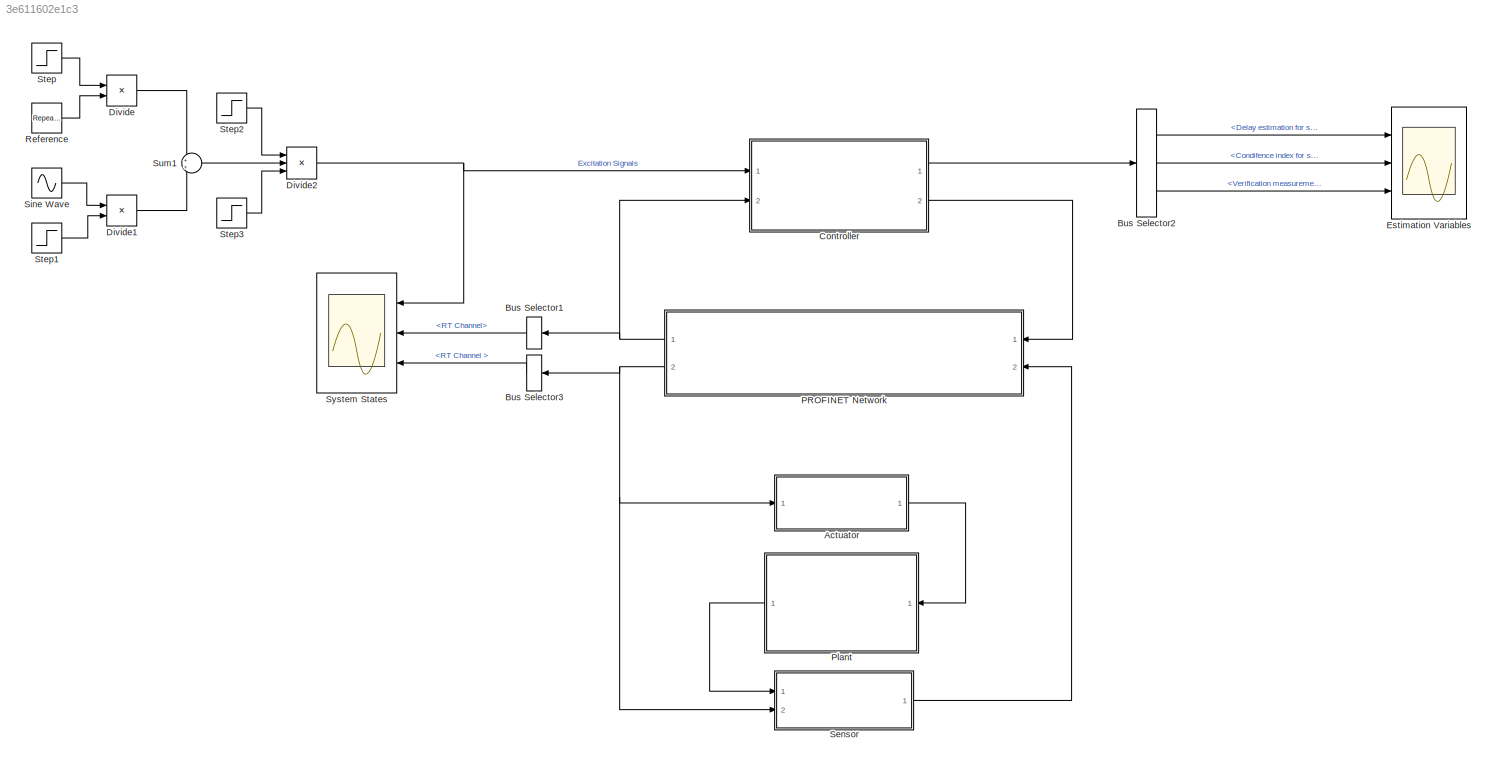
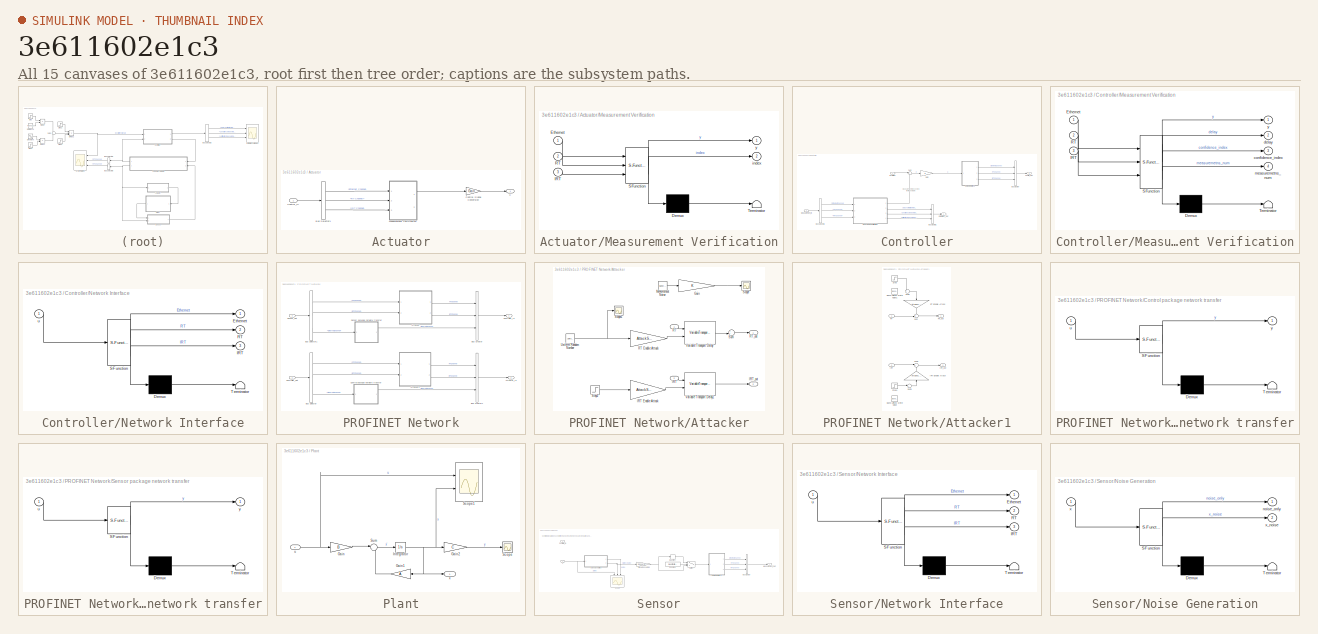
[diagram: thumbnail index - all 15 canvases of the model, root first then tree order]
MODEL slx_3e611602e1c3
KIND model
CONFIG AbsTol = auto
CONFIG EnableMultiTasking = off
CONFIG FixedStep = Ts
CONFIG MaxStep = auto
CONFIG MinStep = auto
CONFIG RelTol = 1e-3
CONFIG SampleTimeConstraint = Unconstrained
CONFIG Solver = FixedStepAuto
CONFIG SolverName = FixedStepAuto
CONFIG StartTime = 0.0
CONFIG StopTime = 80
BLOCK [SubSystem] Actuator
  Ports = [1, 1]
  RequestExecContextInheritance = off
  Variant = off
BLOCK [BusSelector] Actuator/Bus Selector1
  OutputSignals = Ethernet Channel,RT Channel ,IRT Channel
  Ports = [1, 3]
BLOCK [Gain] Actuator/Control Signal Conversion
  Gain = Gain
  OutDataTypeStr = Inherit: Inherit via internal rule
  ParamDataTypeStr = Inherit: Inherit via internal rule
  SaturateOnIntegerOverflow = off
BLOCK [Inport] Actuator/Control_In
  IconDisplay = Port number
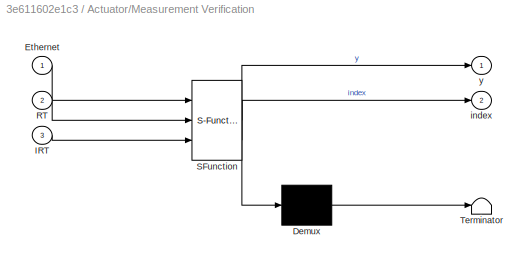
BLOCK [SubSystem] Actuator/Measurement Verification
  ErrorFcn = Stateflow.Translate.translate
  PermitHierarchicalResolution = ExplicitOnly
  Ports = [3, 2]
  RequestExecContextInheritance = off
  SFBlockType = MATLAB Function
  TreatAsAtomicUnit = on
  Variant = off
BLOCK [Demux] Actuator/Measurement Verification/ Demux 
  Outputs = 1
  Ports = [1, 1]
BLOCK [S-Function] Actuator/Measurement Verification/ SFunction 
  EnableBusSupport = on
  FunctionName = sf_sfun
  Parameters = ActuatorCh
  PortCounts = [3 3]
  Ports = [3, 3]
  SFcnIsStateOwnerBlock = off
  SFunctionDeploymentMode = off
  Tag = Stateflow S-Function profinet_simulation_ss_separated_index 1
BLOCK [Terminator] Actuator/Measurement Verification/ Terminator 
BLOCK [Inport] Actuator/Measurement Verification/Ethernet
  IconDisplay = Port number
BLOCK [Inport] Actuator/Measurement Verification/IRT
  IconDisplay = Port number
  Port = 3
BLOCK [Inport] Actuator/Measurement Verification/RT
  IconDisplay = Port number
  Port = 2
BLOCK [Outport] Actuator/Measurement Verification/index
  IconDisplay = Port number
  Port = 2
BLOCK [Outport] Actuator/Measurement Verification/y
  IconDisplay = Port number
BLOCK [Outport] Actuator/u
  IconDisplay = Port number
BLOCK [BusSelector] Bus Selector1
  OutputSignals = RT Channel
  Ports = [1, 1]
BLOCK [BusSelector] Bus Selector2
  OutputSignals = Delay estimation for state,Condifence index for state,Verification measurement number for state
  Ports = [1, 3]
BLOCK [BusSelector] Bus Selector3
  OutputSignals = RT Channel
  Ports = [1, 1]
BLOCK [SubSystem] Controller
  Ports = [2, 2]
  RequestExecContextInheritance = off
  Variant = off
BLOCK [BusCreator] Controller/Bus Creator
  DisplayOption = bar
  InheritFromInputs = on
  Inputs = 3
  Ports = [3, 1]
BLOCK [BusCreator] Controller/Bus Creator1
  DisplayOption = bar
  InheritFromInputs = on
  Inputs = 3
  Ports = [3, 1]
BLOCK [BusSelector] Controller/Bus Selector1
  OutputSignals = Ethernet Channel,RT Channel,IRT Channel
  Ports = [1, 3]
BLOCK [Outport] Controller/Control_Out
  IconDisplay = Port number
  Port = 2
BLOCK [Outport] Controller/Estimation_Out
  IconDisplay = Port number
BLOCK [Inport] Controller/Excitation
  IconDisplay = Port number
BLOCK [Gain] Controller/Gain
  Gain = K
  Multiplication = Matrix(K*u) (u vector)
  OutDataTypeStr = Inherit: Inherit via internal rule
  ParamDataTypeStr = Inherit: Inherit via internal rule
  SaturateOnIntegerOverflow = off
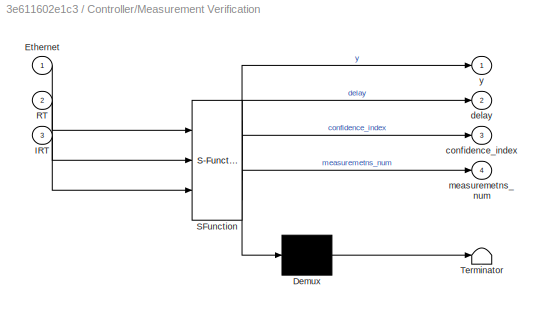
BLOCK [SubSystem] Controller/Measurement Verification
  ErrorFcn = Stateflow.Translate.translate
  PermitHierarchicalResolution = ExplicitOnly
  Ports = [3, 4]
  RequestExecContextInheritance = off
  SFBlockType = MATLAB Function
  SystemSampleTime = Ts
  TreatAsAtomicUnit = on
  Variant = off
BLOCK [Demux] Controller/Measurement Verification/ Demux 
  Outputs = 1
  Ports = [1, 1]
BLOCK [S-Function] Controller/Measurement Verification/ SFunction 
  EnableBusSupport = on
  FunctionName = sf_sfun
  Parameters = N_ver,SensorCh,Ts,Ts_IRT,Ts_RT,Ts_SRT
  PortCounts = [3 5]
  Ports = [3, 5]
  SFcnIsStateOwnerBlock = off
  SFunctionDeploymentMode = off
  Tag = Stateflow S-Function profinet_simulation_ss_separated_index 5
BLOCK [Terminator] Controller/Measurement Verification/ Terminator 
BLOCK [Inport] Controller/Measurement Verification/Ethernet
  IconDisplay = Port number
BLOCK [Inport] Controller/Measurement Verification/IRT
  IconDisplay = Port number
  Port = 3
BLOCK [Inport] Controller/Measurement Verification/RT
  IconDisplay = Port number
  Port = 2
BLOCK [Outport] Controller/Measurement Verification/confidence_index
  IconDisplay = Port number
  Port = 3
BLOCK [Outport] Controller/Measurement Verification/delay
  IconDisplay = Port number
  Port = 2
BLOCK [Outport] Controller/Measurement Verification/measuremetns_num
  IconDisplay = Port number
  Port = 4
BLOCK [Outport] Controller/Measurement Verification/y
  IconDisplay = Port number
BLOCK [Inport] Controller/Measurement_In
  IconDisplay = Port number
  Port = 2
BLOCK [SubSystem] Controller/Network Interface
  ErrorFcn = Stateflow.Translate.translate
  PermitHierarchicalResolution = ExplicitOnly
  Ports = [1, 3]
  RequestExecContextInheritance = off
  SFBlockType = MATLAB Function
  SystemSampleTime = Ts
  TreatAsAtomicUnit = on
  Variant = off
BLOCK [Demux] Controller/Network Interface/ Demux 
  Outputs = 1
  Ports = [1, 1]
BLOCK [S-Function] Controller/Network Interface/ SFunction 
  EnableBusSupport = on
  FunctionName = sf_sfun
  Parameters = ActuatorCh,Ts,Ts_IRT,Ts_RT,Ts_SRT
  PortCounts = [1 4]
  Ports = [1, 4]
  SFcnIsStateOwnerBlock = off
  SFunctionDeploymentMode = off
  Tag = Stateflow S-Function profinet_simulation_ss_separated_index 2
BLOCK [Terminator] Controller/Network Interface/ Terminator 
BLOCK [Outport] Controller/Network Interface/Ethernet
  IconDisplay = Port number
BLOCK [Outport] Controller/Network Interface/IRT
  IconDisplay = Port number
  Port = 3
BLOCK [Outport] Controller/Network Interface/RT
  IconDisplay = Port number
  Port = 2
BLOCK [Inport] Controller/Network Interface/u
  IconDisplay = Port number
BLOCK [Sum] Controller/Sum
  IconShape = round
  InputSameDT = off
  Inputs = |+-
  OutDataTypeStr = Inherit: Inherit via internal rule
  Ports = [2, 1]
  SaturateOnIntegerOverflow = off
BLOCK [Product] Divide
  InputSameDT = off
  Inputs = **
  OutDataTypeStr = Inherit: Inherit via internal rule
  Ports = [2, 1]
  RndMeth = Floor
  SaturateOnIntegerOverflow = off
BLOCK [Product] Divide1
  InputSameDT = off
  Inputs = **
  OutDataTypeStr = Inherit: Inherit via internal rule
  Ports = [2, 1]
  RndMeth = Floor
  SaturateOnIntegerOverflow = off
BLOCK [Product] Divide2
  InputSameDT = off
  Inputs = ***
  OutDataTypeStr = Inherit: Inherit via internal rule
  Ports = [3, 1]
  RndMeth = Floor
  SaturateOnIntegerOverflow = off
BLOCK [Scope] Estimation Variables
  NumInputPorts = 3
  Ports = [3]
  ScopeSpecificationString = Simulink.scopes.TimeScopeBlockCfg('CurrentConfiguration', extmgr.ConfigurationSet(extmgr.Configuration('Core','General UI',true),extmgr.Configuration('Core','Source UI',true),extmgr.Configuration('Sources','WiredSimulink',true,'DataLoggingVariableName','ScopeData4','DataLogging',true,'DataLoggingSaveFormat','StructureWithTime'),extmgr.Configuration('Visuals','Time Domain',true,'SerializedDisplays'...<+3266ch>
BLOCK [SubSystem] PROFINET Network
  Ports = [2, 2]
  RequestExecContextInheritance = off
  Variant = off
BLOCK [Outport] PROFINET Network/Actuator_In
  IconDisplay = Port number
  Port = 2
BLOCK [SubSystem] PROFINET Network/Attacker
  Ports = [2, 2]
  RequestExecContextInheritance = off
  Variant = off
BLOCK [Gain] PROFINET Network/Attacker/Gain
  OutDataTypeStr = Inherit: Inherit via internal rule
  ParamDataTypeStr = Inherit: Inherit via internal rule
  SaturateOnIntegerOverflow = off
BLOCK [Inport] PROFINET Network/Attacker/IRT
  IconDisplay = Port number
  Port = 2
  PortDimensions = 3
BLOCK [Gain] PROFINET Network/Attacker/IRT Enable Attack
  Gain = AttackSensorIRT
  OutDataTypeStr = Inherit: Inherit via internal rule
  ParamDataTypeStr = Inherit: Inherit via internal rule
  SaturateOnIntegerOverflow = off
BLOCK [Outport] PROFINET Network/Attacker/IRT_out
  IconDisplay = Port number
  Port = 2
BLOCK [Reference] PROFINET Network/Attacker/Measurement Noise  REF=simulink/Sources/Band-Limited
White Noise
  Ports = [0, 1]
  SourceBlock = simulink/Sources/Band-Limited\nWhite Noise
  SourceType = Band-Limited White Noise.
BLOCK [Inport] PROFINET Network/Attacker/RT
  IconDisplay = Port number
  PortDimensions = 3
BLOCK [Gain] PROFINET Network/Attacker/RT Enable Attack
  Gain = AttackSensorRT
  OutDataTypeStr = Inherit: Inherit via internal rule
  ParamDataTypeStr = Inherit: Inherit via internal rule
  SaturateOnIntegerOverflow = off
BLOCK [Outport] PROFINET Network/Attacker/RT_out
  IconDisplay = Port number
BLOCK [Scope] PROFINET Network/Attacker/Scope
  NumInputPorts = 1
  Ports = [1]
  ScopeSpecificationString = C++SS(StrPVP('SaveName','ScopeData1'),StrPVP('LimitDataPoints','on'),StrPVP('DataFormat','Array'),StrPVP('Decimation','1'),StrPVP('BlockParamSampleInput','off'))
BLOCK [Scope] PROFINET Network/Attacker/Scope1
  NumInputPorts = 1
  Ports = [1]
  ScopeSpecificationString = Simulink.scopes.TimeScopeBlockCfg('CurrentConfiguration', extmgr.ConfigurationSet(extmgr.Configuration('Core','General UI',true),extmgr.Configuration('Core','Source UI',true),extmgr.Configuration('Sources','WiredSimulink',true,'DataLoggingVariableName','ScopeData1','DataLoggingLimitDataPoints',true,'DataLoggingSaveFormat','Array','DataLoggingDecimation','1','DataLoggingDecimateData',true),extmgr.C...<+1656ch>
BLOCK [Step] PROFINET Network/Attacker/Step2
  After = Val_IRT_Att_Sen*Ts_RT
  Before = Val_IRT_Att_Sen_init*Ts_RT
  SampleTime = 0
  Time = T_IRT_Att_Sen
BLOCK [Sum] PROFINET Network/Attacker/Sum
  IconShape = round
  InputSameDT = off
  Inputs = ++|
  OutDataTypeStr = Inherit: Inherit via internal rule
  Ports = [2, 1]
  SaturateOnIntegerOverflow = off
BLOCK [UniformRandomNumber] PROFINET Network/Attacker/Uniform Random Number
  Maximum = Val_RT_Att_Sen*Ts_RT
  Minimum = [0,0,0]
  SampleTime = 7.7
  Seed = [0,40,7]
BLOCK [VariableTransportDelay] PROFINET Network/Attacker/Variable Transport Delay
  InitialOutput = [0 0 0]
  MaximumDelay = 10
  Ports = [2, 1]
  ZeroDelay = on
BLOCK [VariableTransportDelay] PROFINET Network/Attacker/Variable Transport Delay1
  MaximumDelay = 10
  Ports = [2, 1]
  ZeroDelay = on
BLOCK [SubSystem] PROFINET Network/Attacker1
  Ports = [2, 2]
  RequestExecContextInheritance = off
  Variant = off
BLOCK [Reference] PROFINET Network/Attacker1/Band-Limited White Noise  REF=simulink/Sources/Band-Limited
White Noise
  Ports = [0, 1]
  SourceBlock = simulink/Sources/Band-Limited\nWhite Noise
  SourceType = Band-Limited White Noise.
BLOCK [Reference] PROFINET Network/Attacker1/Band-Limited White Noise1  REF=simulink/Sources/Band-Limited
White Noise
  Ports = [0, 1]
  SourceBlock = simulink/Sources/Band-Limited\nWhite Noise
  SourceType = Band-Limited White Noise.
BLOCK [Inport] PROFINET Network/Attacker1/IRT
  IconDisplay = Port number
  Port = 2
BLOCK [Gain] PROFINET Network/Attacker1/IRT Enable Attack
  Gain = AttackControlIRT
  OutDataTypeStr = Inherit: Inherit via internal rule
  ParamDataTypeStr = Inherit: Inherit via internal rule
  SaturateOnIntegerOverflow = off
BLOCK [Outport] PROFINET Network/Attacker1/IRT_out
  IconDisplay = Port number
  Port = 2
BLOCK [Inport] PROFINET Network/Attacker1/RT
  IconDisplay = Port number
BLOCK [Gain] PROFINET Network/Attacker1/RT Enable Attack
  Gain = AttackControlRT
  OutDataTypeStr = Inherit: Inherit via internal rule
  ParamDataTypeStr = Inherit: Inherit via internal rule
  SaturateOnIntegerOverflow = off
BLOCK [Outport] PROFINET Network/Attacker1/RT_out
  IconDisplay = Port number
BLOCK [Step] PROFINET Network/Attacker1/Step
  After = Val_RT_Att_Cnt
  SampleTime = 0
  Time = T_RT_Att_Cnt
BLOCK [Step] PROFINET Network/Attacker1/Step1
  After = Val_IRT_Att_Cnt
  SampleTime = 0
  Time = T_IRT_Att_Cnt
BLOCK [Sum] PROFINET Network/Attacker1/Sum
  IconShape = round
  InputSameDT = off
  Inputs = ++|
  OutDataTypeStr = Inherit: Inherit via internal rule
  Ports = [2, 1]
  SaturateOnIntegerOverflow = off
BLOCK [Sum] PROFINET Network/Attacker1/Sum1
  IconShape = round
  InputSameDT = off
  Inputs = |++
  OutDataTypeStr = Inherit: Inherit via internal rule
  Ports = [2, 1]
  SaturateOnIntegerOverflow = off
BLOCK [Sum] PROFINET Network/Attacker1/Sum2
  IconShape = round
  InputSameDT = off
  Inputs = ++|
  OutDataTypeStr = Inherit: Inherit via internal rule
  Ports = [2, 1]
  SaturateOnIntegerOverflow = off
BLOCK [Sum] PROFINET Network/Attacker1/Sum3
  IconShape = round
  InputSameDT = off
  Inputs = |++
  OutDataTypeStr = Inherit: Inherit via internal rule
  Ports = [2, 1]
  SaturateOnIntegerOverflow = off
BLOCK [BusCreator] PROFINET Network/Bus Creator
  DisplayOption = bar
  InheritFromInputs = on
  Inputs = 3
  Ports = [3, 1]
BLOCK [BusCreator] PROFINET Network/Bus Creator1
  DisplayOption = bar
  InheritFromInputs = on
  Inputs = 3
  Ports = [3, 1]
BLOCK [BusSelector] PROFINET Network/Bus Selector
  OutputSignals = RT Channel,IRT Channel,Ethernet Channel
  Ports = [1, 3]
BLOCK [BusSelector] PROFINET Network/Bus Selector1
  OutputSignals = RT Channel,IRT Channel,Ethernet Channel
  Ports = [1, 3]
BLOCK [SubSystem] PROFINET Network/Control package network transfer
  ErrorFcn = Stateflow.Translate.translate
  PermitHierarchicalResolution = ExplicitOnly
  Ports = [1, 1]
  RequestExecContextInheritance = off
  SFBlockType = MATLAB Function
  TreatAsAtomicUnit = on
  Variant = off
BLOCK [Demux] PROFINET Network/Control package network transfer/ Demux 
  Outputs = 1
  Ports = [1, 1]
BLOCK [S-Function] PROFINET Network/Control package network transfer/ SFunction 
  EnableBusSupport = on
  FunctionName = sf_sfun
  Parameters = PckgLossRate,PckgTimeLow,PckgTimeUp,Ts,Ts_SRT
  PortCounts = [1 2]
  Ports = [1, 2]
  SFcnIsStateOwnerBlock = off
  SFunctionDeploymentMode = off
  Tag = Stateflow S-Function profinet_simulation_ss_separated_index 3
BLOCK [Terminator] PROFINET Network/Control package network transfer/ Terminator 
BLOCK [Inport] PROFINET Network/Control package network transfer/u
  IconDisplay = Port number
BLOCK [Outport] PROFINET Network/Control package network transfer/y
  IconDisplay = Port number
BLOCK [Outport] PROFINET Network/Controller_In
  IconDisplay = Port number
BLOCK [Inport] PROFINET Network/Controller_Out
  IconDisplay = Port number
BLOCK [SubSystem] PROFINET Network/Sensor package network transfer
  ErrorFcn = Stateflow.Translate.translate
  PermitHierarchicalResolution = ExplicitOnly
  Ports = [1, 1]
  RequestExecContextInheritance = off
  SFBlockType = MATLAB Function
  TreatAsAtomicUnit = on
  Variant = off
BLOCK [Demux] PROFINET Network/Sensor package network transfer/ Demux 
  Outputs = 1
  Ports = [1, 1]
BLOCK [S-Function] PROFINET Network/Sensor package network transfer/ SFunction 
  EnableBusSupport = on
  FunctionName = sf_sfun
  Parameters = PckgLossRate,PckgTimeLow,PckgTimeUp,Ts,Ts_SRT
  PortCounts = [1 2]
  Ports = [1, 2]
  SFcnIsStateOwnerBlock = off
  SFunctionDeploymentMode = off
  Tag = Stateflow S-Function profinet_simulation_ss_separated_index 7
BLOCK [Terminator] PROFINET Network/Sensor package network transfer/ Terminator 
BLOCK [Inport] PROFINET Network/Sensor package network transfer/u
  IconDisplay = Port number
BLOCK [Outport] PROFINET Network/Sensor package network transfer/y
  IconDisplay = Port number
BLOCK [Inport] PROFINET Network/Sensor_Out
  IconDisplay = Port number
  Port = 2
BLOCK [SubSystem] Plant
  Ports = [1, 1]
  RequestExecContextInheritance = off
  Variant = off
BLOCK [Gain] Plant/Gain
  Gain = B
  Multiplication = Matrix(K*u) (u vector)
  OutDataTypeStr = Inherit: Inherit via internal rule
  ParamDataTypeStr = Inherit: Inherit via internal rule
  SaturateOnIntegerOverflow = off
BLOCK [Gain] Plant/Gain1
  Gain = A
  Multiplication = Matrix(K*u)
  OutDataTypeStr = Inherit: Inherit via internal rule
  ParamDataTypeStr = Inherit: Inherit via internal rule
  SaturateOnIntegerOverflow = off
BLOCK [Gain] Plant/Gain2
  Gain = C
  Multiplication = Matrix(K*u) (u vector)
  OutDataTypeStr = Inherit: Inherit via internal rule
  ParamDataTypeStr = Inherit: Inherit via internal rule
  SaturateOnIntegerOverflow = off
BLOCK [Integrator] Plant/Integrator
  InitialCondition = x0
  Ports = [1, 1]
BLOCK [Scope] Plant/Scope
  NumInputPorts = 1
  Ports = [1]
  ScopeSpecificationString = Simulink.scopes.TimeScopeBlockCfg('CurrentConfiguration', extmgr.ConfigurationSet(extmgr.Configuration('Core','General UI',true),extmgr.Configuration('Core','Source UI',true),extmgr.Configuration('Sources','WiredSimulink',true,'DataLoggingVariableName','ScopeData1','DataLoggingSaveFormat','Array','DataLoggingDecimation','1','DataLoggingDecimateData',true),extmgr.Configuration('Visuals','Time Domai...<+1472ch>
BLOCK [Scope] Plant/Scope1
  NumInputPorts = 2
  Ports = [2]
  ScopeSpecificationString = Simulink.scopes.TimeScopeBlockCfg('CurrentConfiguration', extmgr.ConfigurationSet(extmgr.Configuration('Core','General UI',true),extmgr.Configuration('Core','Source UI',true),extmgr.Configuration('Sources','WiredSimulink',true,'DataLoggingVariableName','ScopeData2','DataLogging',true,'DataLoggingSaveFormat','StructureWithTime'),extmgr.Configuration('Visuals','Time Domain',true,'SerializedDisplays'...<+2666ch>
BLOCK [Sum] Plant/Sum
  IconShape = round
  InputSameDT = off
  Inputs = |++
  OutDataTypeStr = Inherit: Inherit via internal rule
  Ports = [2, 1]
  SaturateOnIntegerOverflow = off
BLOCK [Inport] Plant/u
  IconDisplay = Port number
BLOCK [Outport] Plant/x
  IconDisplay = Port number
BLOCK [Reference] Reference  REF=simulink/Sources/Repeating
Sequence
Stair
  Ports = [0, 1]
  SourceBlock = simulink/Sources/Repeating\nSequence\nStair
  SourceType = Repeating Sequence Stair
BLOCK [SubSystem] Sensor
  Ports = [2, 1]
  RequestExecContextInheritance = off
  Variant = off
BLOCK [BusCreator] Sensor/Bus Creator
  DisplayOption = bar
  InheritFromInputs = on
  Inputs = 3
  Ports = [3, 1]
BLOCK [Constant] Sensor/Constant
  Value = QuantizationEnable
BLOCK [Inport] Sensor/Controller_In
  IconDisplay = Port number
  Port = 2
BLOCK [Outport] Sensor/Measurement_Out
  IconDisplay = Port number
BLOCK [SubSystem] Sensor/Network Interface
  ErrorFcn = Stateflow.Translate.translate
  PermitHierarchicalResolution = ExplicitOnly
  Ports = [1, 3]
  RequestExecContextInheritance = off
  SFBlockType = MATLAB Function
  SystemSampleTime = Ts
  TreatAsAtomicUnit = on
  Variant = off
BLOCK [Demux] Sensor/Network Interface/ Demux 
  Outputs = 1
  Ports = [1, 1]
BLOCK [S-Function] Sensor/Network Interface/ SFunction 
  EnableBusSupport = on
  FunctionName = sf_sfun
  Parameters = N_samples,SensorCh,Ts,Ts_IRT,Ts_RT,Ts_SRT
  PortCounts = [1 4]
  Ports = [1, 4]
  SFcnIsStateOwnerBlock = off
  SFunctionDeploymentMode = off
  Tag = Stateflow S-Function profinet_simulation_ss_separated_index 6
BLOCK [Terminator] Sensor/Network Interface/ Terminator 
BLOCK [Outport] Sensor/Network Interface/Ethernet
  IconDisplay = Port number
BLOCK [Outport] Sensor/Network Interface/IRT
  IconDisplay = Port number
  Port = 3
BLOCK [Outport] Sensor/Network Interface/RT
  IconDisplay = Port number
  Port = 2
BLOCK [Inport] Sensor/Network Interface/u
  IconDisplay = Port number
BLOCK [SubSystem] Sensor/Noise Generation
  ErrorFcn = Stateflow.Translate.translate
  PermitHierarchicalResolution = ExplicitOnly
  Ports = [1, 2]
  RequestExecContextInheritance = off
  SFBlockType = MATLAB Function
  SystemSampleTime = Ts
  TreatAsAtomicUnit = on
  Variant = off
BLOCK [Demux] Sensor/Noise Generation/ Demux 
  Outputs = 1
  Ports = [1, 1]
BLOCK [S-Function] Sensor/Noise Generation/ SFunction 
  EnableBusSupport = on
  FunctionName = sf_sfun
  Parameters = NoiseMagnitude,SensorCh,SensorNoise,Ts,Ts_IRT,Ts_RT,Ts_SRT
  PortCounts = [1 3]
  Ports = [1, 3]
  SFcnIsStateOwnerBlock = off
  SFunctionDeploymentMode = off
  Tag = Stateflow S-Function profinet_simulation_ss_separated_index 4
BLOCK [Terminator] Sensor/Noise Generation/ Terminator 
BLOCK [Outport] Sensor/Noise Generation/noise_only
  IconDisplay = Port number
BLOCK [Inport] Sensor/Noise Generation/x
  IconDisplay = Port number
BLOCK [Outport] Sensor/Noise Generation/x_noise
  IconDisplay = Port number
  Port = 2
BLOCK [Quantizer] Sensor/Quantizer
  QuantizationInterval = (SensorQuantMax-SensorQuantMin)./SensorQuantN
BLOCK [Scope] Sensor/Scope
  NumInputPorts = 3
  Ports = [3]
  ScopeSpecificationString = Simulink.scopes.TimeScopeBlockCfg('CurrentConfiguration', extmgr.ConfigurationSet(extmgr.Configuration('Core','General UI',true),extmgr.Configuration('Core','Source UI',true),extmgr.Configuration('Sources','WiredSimulink',true,'DataLoggingVariableName','ScopeData1'),extmgr.Configuration('Visuals','Time Domain',true,'SerializedDisplays',{struct('MinYLimReal','-0.00125','MaxYLimReal','0.00185','YLab...<+2867ch>
BLOCK [Gain] Sensor/Signal Conversion
  Gain = SensorGain
  OutDataTypeStr = Inherit: Inherit via internal rule
  ParamDataTypeStr = Inherit: Inherit via internal rule
  SaturateOnIntegerOverflow = off
BLOCK [Switch] Sensor/Switch
  Criteria = u2 > Threshold
  InputSameDT = off
  SaturateOnIntegerOverflow = off
BLOCK [Inport] Sensor/x
  IconDisplay = Port number
BLOCK [Sin] Sine Wave
  Amplitude = [1 1 1]
  Frequency = [70*pi, 60*pi,80*pi]
  Ports = [0, 1]
  SampleTime = 0
BLOCK [Step] Step
  After = 0
  Before = 1
  SampleTime = 0
  Time = 20
BLOCK [Step] Step1
  SampleTime = 0
  Time = 40
BLOCK [Step] Step2
  After = 0
  Before = 1
  SampleTime = 0
  Time = 60
BLOCK [Step] Step3
  SampleTime = 0
  Time = 0
BLOCK [Sum] Sum1
  IconShape = round
  InputSameDT = off
  OutDataTypeStr = Inherit: Inherit via internal rule
  Ports = [2, 1]
  SaturateOnIntegerOverflow = off
BLOCK [Scope] System States
  NumInputPorts = 3
  Ports = [3]
  ScopeSpecificationString = Simulink.scopes.TimeScopeBlockCfg('CurrentConfiguration', extmgr.ConfigurationSet(extmgr.Configuration('Core','General UI',true),extmgr.Configuration('Core','Source UI',true),extmgr.Configuration('Sources','WiredSimulink',true,'DataLoggingVariableName','ScopeData5','DataLogging',true,'DataLoggingSaveFormat','StructureWithTime'),extmgr.Configuration('Visuals','Time Domain',true,'SerializedDisplays'...<+2986ch>
ANNOTATION Controller: Measurements recovered from the network
ANNOTATION Sensor: Controller signal is to be used for the Random number seeds, sincronisation and similar
LINE Actuator/Bus Selector1:1 -> Actuator/Measurement Verification:1
LINE Actuator/Bus Selector1:2 -> Actuator/Measurement Verification:2
LINE Actuator/Bus Selector1:3 -> Actuator/Measurement Verification:3
LINE Actuator/Control Signal Conversion:1 -> Actuator/u:1
LINE Actuator/Control_In:1 -> Actuator/Bus Selector1:1
LINE Actuator/Measurement Verification:1 -> Actuator/Control Signal Conversion:1
LINE Actuator:1 -> Plant:1
LINE Bus Selector1:1 -> System States:2
LINE Bus Selector2:1 -> Estimation Variables:1
LINE Bus Selector2:2 -> Estimation Variables:2
LINE Bus Selector2:3 -> Estimation Variables:3
LINE Bus Selector3:1 -> System States:3
LINE Controller/Bus Creator1:1 -> Controller/Estimation_Out:1
LINE Controller/Bus Creator:1 -> Controller/Control_Out:1
LINE Controller/Bus Selector1:1 -> Controller/Measurement Verification:1
LINE Controller/Bus Selector1:2 -> Controller/Measurement Verification:2
LINE Controller/Bus Selector1:3 -> Controller/Measurement Verification:3
LINE Controller/Excitation:1 -> Controller/Sum:1
LINE Controller/Gain:1 -> Controller/Network Interface:1
LINE Controller/Measurement Verification:1 -> Controller/Sum:2
LINE Controller/Measurement Verification:2 -> Controller/Bus Creator1:1
LINE Controller/Measurement Verification:3 -> Controller/Bus Creator1:2
LINE Controller/Measurement Verification:4 -> Controller/Bus Creator1:3
LINE Controller/Measurement_In:1 -> Controller/Bus Selector1:1
LINE Controller/Network Interface:1 -> Controller/Bus Creator:1
LINE Controller/Network Interface:2 -> Controller/Bus Creator:2
LINE Controller/Network Interface:3 -> Controller/Bus Creator:3
LINE Controller/Sum:1 -> Controller/Gain:1
LINE Controller:1 -> Bus Selector2:1
LINE Controller:2 -> PROFINET Network:1
LINE Divide1:1 -> Sum1:2
NET Divide2:1 -> Controller:1, System States:1
LINE Divide:1 -> Sum1:1
LINE PROFINET Network/Attacker/Gain:1 -> PROFINET Network/Attacker/Scope:1
LINE PROFINET Network/Attacker/IRT Enable Attack:1 -> PROFINET Network/Attacker/Variable Transport Delay1:2
LINE PROFINET Network/Attacker/IRT:1 -> PROFINET Network/Attacker/Variable Transport Delay1:1
LINE PROFINET Network/Attacker/Measurement Noise:1 -> PROFINET Network/Attacker/Gain:1
LINE PROFINET Network/Attacker/RT Enable Attack:1 -> PROFINET Network/Attacker/Variable Transport Delay:2
LINE PROFINET Network/Attacker/RT:1 -> PROFINET Network/Attacker/Variable Transport Delay:1
LINE PROFINET Network/Attacker/Step2:1 -> PROFINET Network/Attacker/IRT Enable Attack:1
LINE PROFINET Network/Attacker/Sum:1 -> PROFINET Network/Attacker/RT_out:1
NET PROFINET Network/Attacker/Uniform Random Number:1 -> PROFINET Network/Attacker/RT Enable Attack:1, PROFINET Network/Attacker/Scope1:1
LINE PROFINET Network/Attacker/Variable Transport Delay1:1 -> PROFINET Network/Attacker/IRT_out:1
LINE PROFINET Network/Attacker/Variable Transport Delay:1 -> PROFINET Network/Attacker/Sum:2
LINE PROFINET Network/Attacker1/IRT Enable Attack:1 -> PROFINET Network/Attacker1/Sum1:2
LINE PROFINET Network/Attacker1/IRT:1 -> PROFINET Network/Attacker1/Sum1:1
LINE PROFINET Network/Attacker1/RT Enable Attack:1 -> PROFINET Network/Attacker1/Sum:1
LINE PROFINET Network/Attacker1/RT:1 -> PROFINET Network/Attacker1/Sum:2
LINE PROFINET Network/Attacker1/Step1:1 -> PROFINET Network/Attacker1/Sum3:1
LINE PROFINET Network/Attacker1/Step:1 -> PROFINET Network/Attacker1/Sum2:1
LINE PROFINET Network/Attacker1/Sum1:1 -> PROFINET Network/Attacker1/IRT_out:1
LINE PROFINET Network/Attacker1/Sum2:1 -> PROFINET Network/Attacker1/RT Enable Attack:1
LINE PROFINET Network/Attacker1/Sum3:1 -> PROFINET Network/Attacker1/IRT Enable Attack:1
LINE PROFINET Network/Attacker1/Sum:1 -> PROFINET Network/Attacker1/RT_out:1
LINE PROFINET Network/Attacker1:1 -> PROFINET Network/Bus Creator1:1
LINE PROFINET Network/Attacker1:2 -> PROFINET Network/Bus Creator1:2
LINE PROFINET Network/Attacker:1 -> PROFINET Network/Bus Creator:1
LINE PROFINET Network/Attacker:2 -> PROFINET Network/Bus Creator:2
LINE PROFINET Network/Bus Creator1:1 -> PROFINET Network/Actuator_In:1
LINE PROFINET Network/Bus Creator:1 -> PROFINET Network/Controller_In:1
LINE PROFINET Network/Bus Selector1:1 -> PROFINET Network/Attacker:1
LINE PROFINET Network/Bus Selector1:2 -> PROFINET Network/Attacker:2
LINE PROFINET Network/Bus Selector1:3 -> PROFINET Network/Sensor package network transfer:1
LINE PROFINET Network/Bus Selector:1 -> PROFINET Network/Attacker1:1
LINE PROFINET Network/Bus Selector:2 -> PROFINET Network/Attacker1:2
LINE PROFINET Network/Bus Selector:3 -> PROFINET Network/Control package network transfer:1
LINE PROFINET Network/Control package network transfer:1 -> PROFINET Network/Bus Creator1:3
LINE PROFINET Network/Controller_Out:1 -> PROFINET Network/Bus Selector:1
LINE PROFINET Network/Sensor package network transfer:1 -> PROFINET Network/Bus Creator:3
LINE PROFINET Network/Sensor_Out:1 -> PROFINET Network/Bus Selector1:1
NET PROFINET Network:1 -> Bus Selector1:1, Controller:2
NET PROFINET Network:2 -> Actuator:1, Bus Selector3:1, Sensor:2
LINE Plant/Gain1:1 -> Plant/Sum:2
LINE Plant/Gain2:1 -> Plant/Scope:1
LINE Plant/Gain:1 -> Plant/Sum:1
NET Plant/Integrator:1 -> Plant/Gain1:1, Plant/Gain2:1, Plant/Scope1:2, Plant/x:1
LINE Plant/Sum:1 -> Plant/Integrator:1
NET Plant/u:1 -> Plant/Gain:1, Plant/Scope1:1
LINE Plant:1 -> Sensor:1
LINE Reference:1 -> Divide:2
LINE Sensor/Bus Creator:1 -> Sensor/Measurement_Out:1
LINE Sensor/Constant:1 -> Sensor/Switch:2
LINE Sensor/Network Interface:1 -> Sensor/Bus Creator:1
LINE Sensor/Network Interface:2 -> Sensor/Bus Creator:2
LINE Sensor/Network Interface:3 -> Sensor/Bus Creator:3
LINE Sensor/Noise Generation:1 -> Sensor/Scope:3
NET Sensor/Noise Generation:2 -> Sensor/Scope:2, Sensor/Signal Conversion:1
LINE Sensor/Quantizer:1 -> Sensor/Switch:1
NET Sensor/Signal Conversion:1 -> Sensor/Quantizer:1, Sensor/Switch:3
LINE Sensor/Switch:1 -> Sensor/Network Interface:1
NET Sensor/x:1 -> Sensor/Noise Generation:1, Sensor/Scope:1
LINE Sensor:1 -> PROFINET Network:2
LINE Sine Wave:1 -> Divide1:1
LINE Step1:1 -> Divide1:2
LINE Step2:1 -> Divide2:1
LINE Step3:1 -> Divide2:3
LINE Step:1 -> Divide:1
LINE Sum1:1 -> Divide2:2
note: NET lines group one-source signal fan-out (src -> all destinations, sorted); 1:1 wires keep LINE
CHART Actuator/Measurement Verification states=1 transitions=1
  STATE_LABEL 'eML_blk_kernel()'
  STATE_LABEL 'SCRIPT:\nfunction [y,index]= fcn(Ethernet, RT, IRT, ActuatorCh)\n\nEncCh = Ethernet;\npersistent y_SRT;\n%% Initialisation\nif isempty(y_SRT)\n    y_SRT= 0;\nend\n\n%%  Sensor data is accepted via the PROFIBUS channel RT or IRT \nif ActuatorCh == 1\n    y = RT;\nelse\n    y = IRT;\nend\n\n\n%% Signal verification of SRT package receival\n% if length(EncCh) > 1 && EncCh(2)\n%       y_SRT = EncCh(1);\n% end\nindex = [y_S...<+5ch>'
CHART Controller/Network Interface states=1 transitions=1
  STATE_LABEL 'eML_blk_kernel()'
  STATE_LABEL 'SCRIPT:\nfunction [Ethernet, RT, IRT] = fcn(u, Ts_IRT, Ts_RT, Ts, Ts_SRT, ActuatorCh)\n\npersistent t RT_old SRT_old IRT_old;\n%% Initialisation\nif isempty(t) \n    t=0;\n    RT_old=zeros(length(u),1);\n    IRT_old=zeros(length(u),1);\n    SRT_old=zeros(length(u),1);\nelse\n    t=t+1;\nend\n\n%% Multiplexing data in three PROFINET channels \n%\n%  The data control data is sent either by RT or IRT channel and SRT...<+453ch>'
CHART PROFINET Network/Control package network transfer states=1 transitions=1
  STATE_LABEL 'eML_blk_kernel()'
  STATE_LABEL 'SCRIPT:\nfunction y  = fcn(u, PckgTimeLow, PckgTimeUp, PckgLossRate, Ts, Ts_SRT)\n\nu_ = u;\n\n\npersistent delay loss PckgLow PckgUp;\n\nif isempty(delay)\n    delay = zeros(length(u),1) - 1;\n    loss = zeros(length(u),1) - 1;\n    rng(3453426245);\n    PckgLow = PckgTimeLow/100*round(Ts_SRT / Ts);\n    PckgUp = PckgTimeUp/100*round(Ts_SRT / Ts);\nend\n\n\n\nlen=length(u(:,1));\nfor i = 1: len\n    if u(i,2) == 1\n ...<+342ch>'
CHART Sensor/Noise Generation states=1 transitions=1
  STATE_LABEL 'eML_blk_kernel()'
  STATE_LABEL 'SCRIPT:\nfunction [noise_only,   x_noise]= fcn(SensorNoise,NoiseMagnitude,Ts_IRT, Ts_RT, Ts, Ts_SRT, x, SensorCh)\n\n\nif ~SensorNoise \n    x_noise = x;\n    noise_only = zeros(length(x),1);\n    return;\nend\n\n\npersistent t noise ms register uniqueLength stages weights;\n%% Initialisation\nif isempty(t) \n    t=0;\n    noise = zeros(length(x),1);\n       \n    % Random number algorithm intitialization \n    sta...<+858ch>'
CHART Controller/Measurement Verification states=1 transitions=1
  STATE_LABEL 'eML_blk_kernel()'
  STATE_LABEL 'SCRIPT:\nfunction [y,delay,confidence_index,measuremetns_num] = fcn(Ethernet, RT, IRT, SensorCh, Ts_RT, Ts_SRT, Ts_IRT, Ts, N_ver)\n\n\npersistent RT_buf IRT_buf delay_ind conf_ind t RT_snap_buf IRT_snap_buf N_samples_used measur_num;\n%% Initialization\nif isempty(t)\n    RT_snap_buf = zeros(length(RT),N_ver);\n    IRT_snap_buf = zeros(length(IRT),N_ver);\n    RT_buf = zeros(length(RT),N_ver);\n    IRT_buf...<+3608ch>'
CHART Sensor/Network Interface states=1 transitions=1
  STATE_LABEL 'eML_blk_kernel()'
  STATE_LABEL 'SCRIPT:\nfunction [Ethernet, RT, IRT] = fcn(u, Ts_IRT, Ts_RT, Ts, Ts_SRT, SensorCh, N_samples)\n\npersistent t RT_old SRT_old IRT_old u_buf;\n%% Initialisation\nif isempty(t) \n    t=0;\n    RT_old=zeros(length(u),1);\n    IRT_old=zeros(length(u),1);\n    SRT_old=zeros(length(u),N_samples);\n    u_buf = zeros(length(u),N_samples);\n    t=t+1;\nelse\n    t=t+1;\n    if mod(t,floor(Ts_SRT/Ts)) ~= 0\n        if (mo...<+972ch>'
CHART PROFINET Network/Sensor package network transfer states=1 transitions=1
  STATE_LABEL 'eML_blk_kernel()'
  STATE_LABEL 'SCRIPT:\nfunction y  = fcn(u, Ts_SRT, PckgTimeLow, PckgTimeUp, PckgLossRate, Ts)\n\nu_ = u;\n\npersistent delay loss PckgLow PckgUp;\n\nif isempty(delay)\n    delay = zeros(length(u),1) - 1;\n    loss = zeros(length(u),1) - 1;\n    rng(345342645);\n    PckgLow = PckgTimeLow/100*round(Ts_SRT / Ts);\n    PckgUp = PckgTimeUp/100*round(Ts_SRT / Ts);\nend\n\n\n\nlen=length(u(:,1));\nfor i = 1: len\n    if u(i,1) == 1\n   ...<+342ch>'
